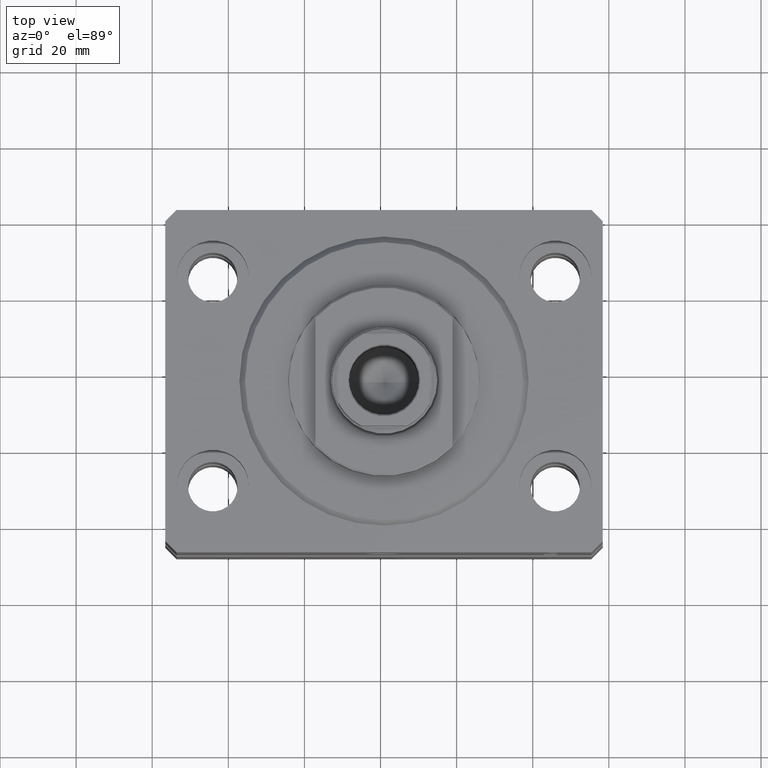
[diagram: clean part render]
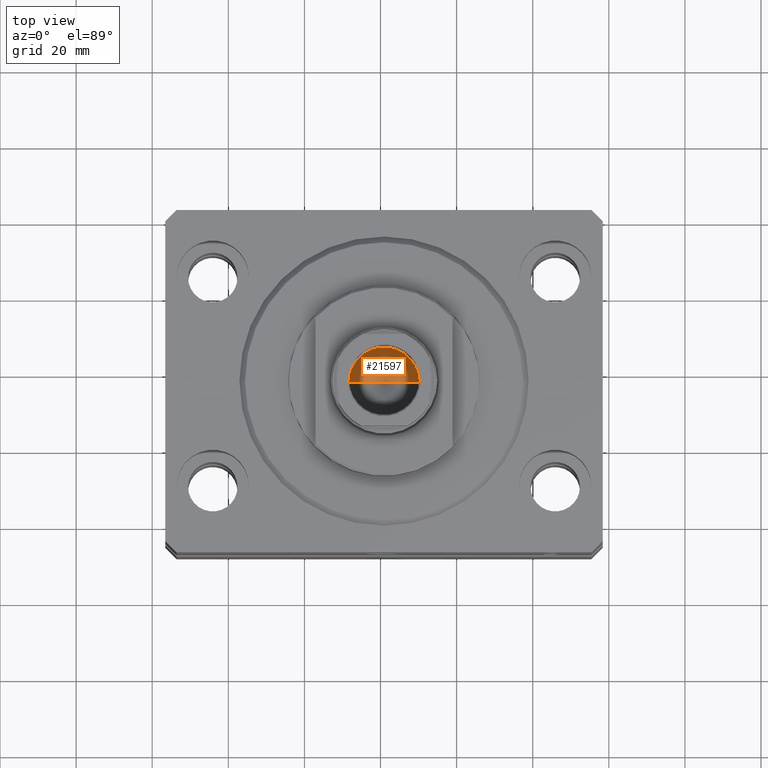
[diagram: same view with one face highlighted and labeled with its STEP entity id]
A machine part, top view. The second image highlights one B-rep face of the part: STEP entity #21597.
In plain terms, the highlighted conical surface has half-angle 59 deg.
Its self-contained STEP definition (entity closure, byte-faithful):
#1903 = DIRECTION ( 'NONE',  ( 0.8571673007021117785, 0.000000000000000000, 0.5150380749100550437 ) ) ;
#3662 = VERTEX_POINT ( 'NONE', #7352 ) ;
#3776 = EDGE_CURVE ( 'NONE', #3662, #22203, #42421, .T. ) ;
#4052 = EDGE_LOOP ( 'NONE', ( #45484, #14156, #4338 ) ) ;
#4338 = ORIENTED_EDGE ( 'NONE', *, *, #22414, .T. ) ;
#4746 = DIRECTION ( 'NONE',  ( -0.8571673007021117785, 1.049727191138617956E-16, 0.5150380749100550437 ) ) ;
#7019 = CARTESIAN_POINT ( 'NONE',  ( 0.000000000000000000, 0.000000000000000000, 72.09999999999999432 ) ) ;
#7352 = CARTESIAN_POINT ( 'NONE',  ( -1.046994375366439223E-14, 0.000000000000000000, 66.54203927399505858 ) ) ;
#8172 = CIRCLE ( 'NONE', #28268, 9.249999999999994671 ) ;
#12036 = DIRECTION ( 'NONE',  ( -0.000000000000000000, -0.000000000000000000, 1.000000000000000000 ) ) ;
#14156 = ORIENTED_EDGE ( 'NONE', *, *, #38717, .T. ) ;
#17264 = VERTEX_POINT ( 'NONE', #26384 ) ;
#19327 = AXIS2_PLACEMENT_3D ( 'NONE', #36627, #12036, #22046 ) ;
#20981 = DIRECTION ( 'NONE',  ( 1.000000000000000000, 0.000000000000000000, 0.000000000000000000 ) ) ;
#21597 = ADVANCED_FACE ( 'NONE', ( #22485 ), #33400, .F. ) ;
#22046 = DIRECTION ( 'NONE',  ( 1.000000000000000000, 0.000000000000000000, 0.000000000000000000 ) ) ;
#22203 = VERTEX_POINT ( 'NONE', #31921 ) ;
#22414 = EDGE_CURVE ( 'NONE', #17264, #22203, #8172, .T. ) ;
#22485 = FACE_OUTER_BOUND ( 'NONE', #4052, .T. ) ;
#24770 = CARTESIAN_POINT ( 'NONE',  ( -9.249999999999994671, 1.132798289211300909E-15, 72.09999999999999432 ) ) ;
#26384 = CARTESIAN_POINT ( 'NONE',  ( 9.249999999999994671, 0.000000000000000000, 72.09999999999999432 ) ) ;
#26543 = CARTESIAN_POINT ( 'NONE',  ( 9.249999999999994671, 0.000000000000000000, 72.09999999999999432 ) ) ;
#27712 = DIRECTION ( 'NONE',  ( -0.000000000000000000, -0.000000000000000000, 1.000000000000000000 ) ) ;
#27828 = VECTOR ( 'NONE', #1903, 1000.000000000000000 ) ;
#28268 = AXIS2_PLACEMENT_3D ( 'NONE', #7019, #27712, #20981 ) ;
#31921 = CARTESIAN_POINT ( 'NONE',  ( -9.249999999999994671, 1.132798289211300909E-15, 72.09999999999999432 ) ) ;
#33400 = CONICAL_SURFACE ( 'NONE', #19327, 9.249999999999994671, 1.029744258676653423 ) ;
#35900 = VECTOR ( 'NONE', #4746, 1000.000000000000000 ) ;
#36627 = CARTESIAN_POINT ( 'NONE',  ( 0.000000000000000000, 0.000000000000000000, 72.09999999999999432 ) ) ;
#38717 = EDGE_CURVE ( 'NONE', #3662, #17264, #40694, .T. ) ;
#40694 = LINE ( 'NONE', #26543, #27828 ) ;
#42421 = LINE ( 'NONE', #24770, #35900 ) ;
#45484 = ORIENTED_EDGE ( 'NONE', *, *, #3776, .F. ) ;